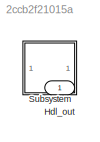
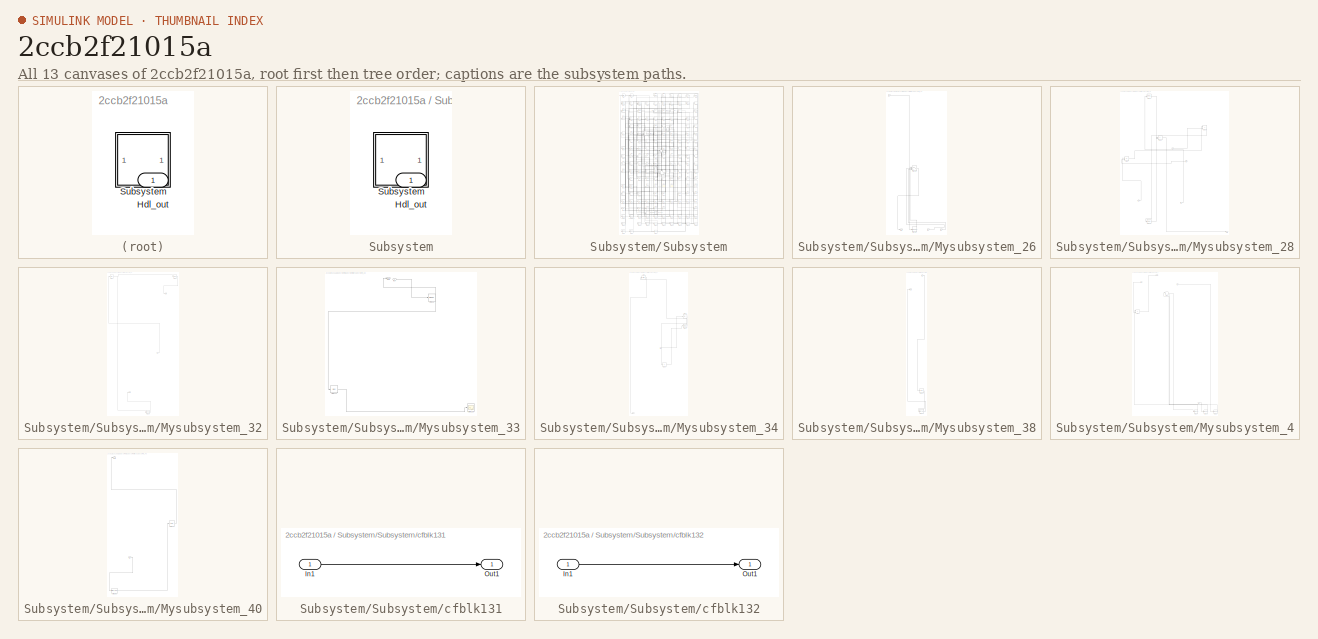
[diagram: thumbnail index - all 13 canvases of the model, root first then tree order]
MODEL slx_2ccb2f21015a
KIND model
CONFIG AbsTol = auto
CONFIG EnableMultiTasking = off
CONFIG FixedStep = auto
CONFIG MaxStep = auto
CONFIG MinStep = auto
CONFIG RelTol = 1e-3
CONFIG SampleTimeConstraint = Unconstrained
CONFIG SolverName = VariableStepAuto
CONFIG StartTime = 0.0
CONFIG StopTime = 10.0
BLOCK [Outport] Hdl_out
  OutDataTypeStr = uint8
BLOCK [SubSystem] Subsystem
BLOCK [Outport] Subsystem/Hdl_out
  OutDataTypeStr = uint8
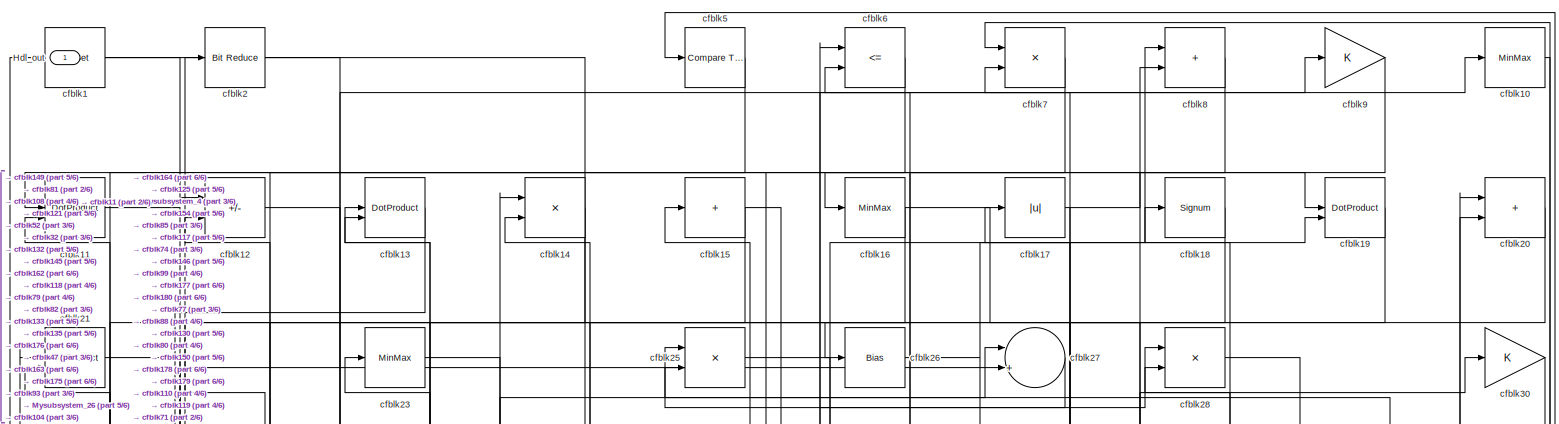
[diagram: Subsystem/Subsystem - part 1/6, full width, top band]
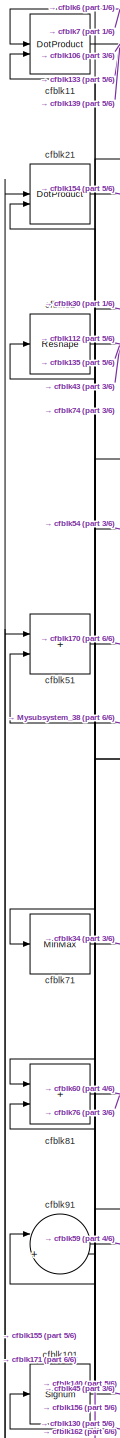
[diagram: Subsystem/Subsystem - part 2/6, top left region]
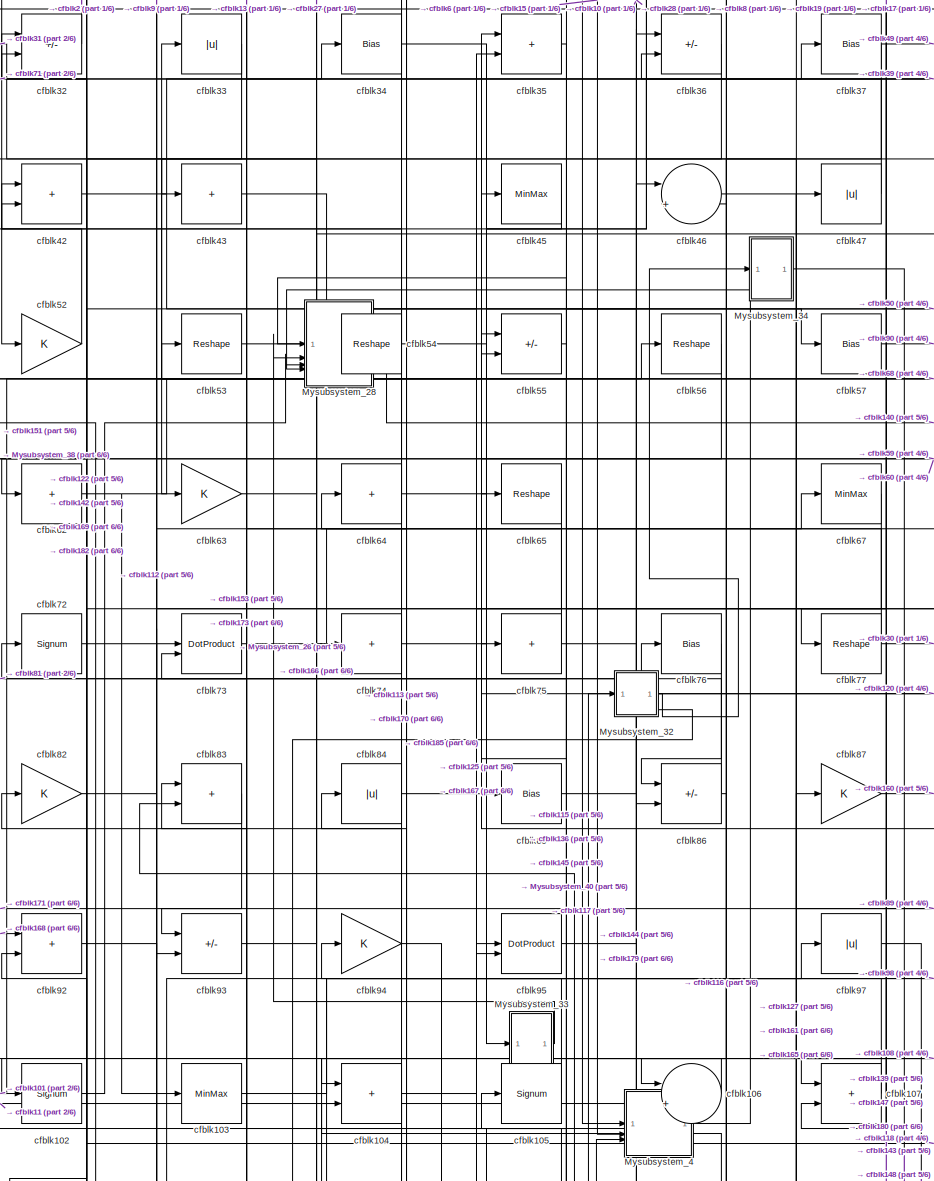
[diagram: Subsystem/Subsystem - part 3/6, central region]
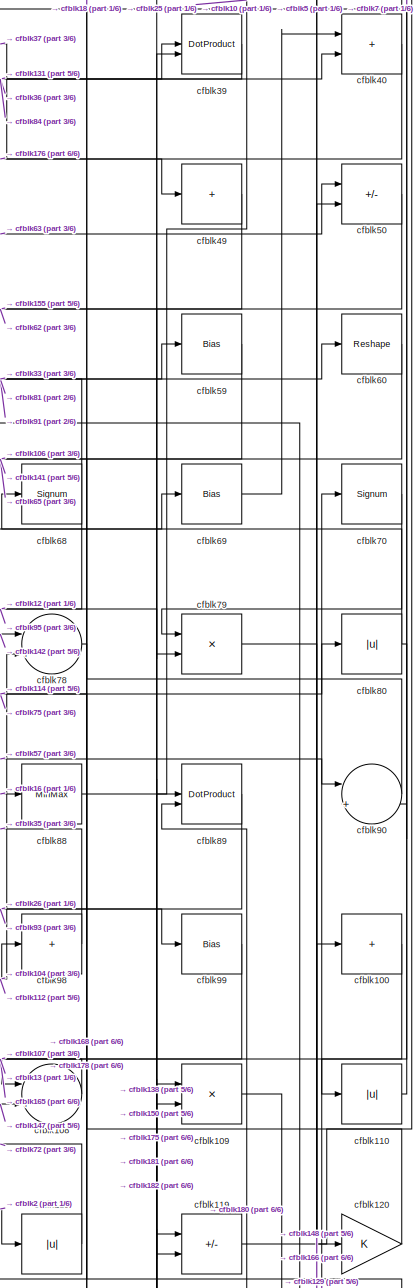
[diagram: Subsystem/Subsystem - part 4/6, middle right region]
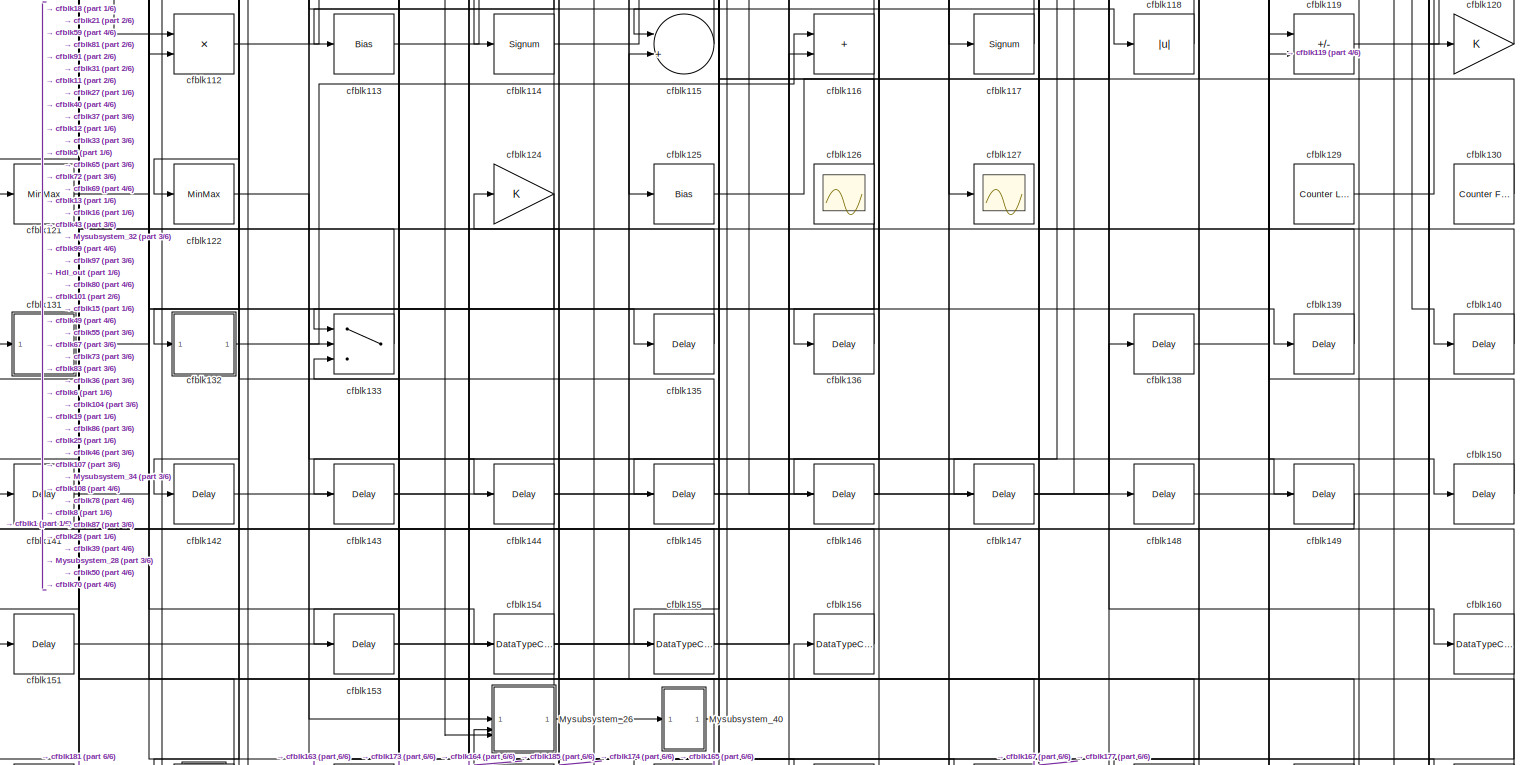
[diagram: Subsystem/Subsystem - part 5/6, full width, bottom band]
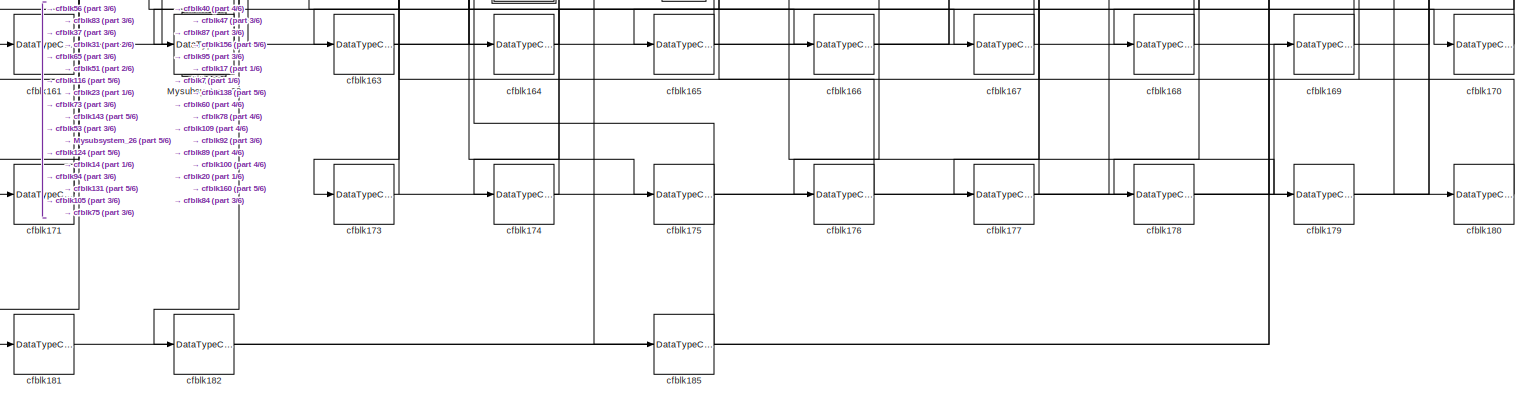
[diagram: Subsystem/Subsystem - part 6/6, full width, bottom band]
BLOCK [SubSystem] Subsystem/Subsystem
BLOCK [Outport] Subsystem/Subsystem/Hdl_out
  OutDataTypeStr = uint8
BLOCK [SubSystem] Subsystem/Subsystem/Mysubsystem_26
  RTWFcnName = Mysubsystem_26
  RTWFcnNameOpts = User specified
  RTWFileNameOpts = Use function name
  RTWSystemCode = Reusable function
  TreatAsAtomicUnit = on
BLOCK [Inport] Subsystem/Subsystem/Mysubsystem_26/In1
BLOCK [Inport] Subsystem/Subsystem/Mysubsystem_26/In2
  Port = 2
BLOCK [Inport] Subsystem/Subsystem/Mysubsystem_26/In3
  Port = 3
BLOCK [Outport] Subsystem/Subsystem/Mysubsystem_26/Out1
BLOCK [Switch] Subsystem/Subsystem/Mysubsystem_26/cfblk134
  InputSameDT = off
  SaturateOnIntegerOverflow = off
BLOCK [DataTypeConversion] Subsystem/Subsystem/Mysubsystem_26/cfblk184
  OutDataTypeStr = uint8
  RndMeth = Floor
  SaturateOnIntegerOverflow = off
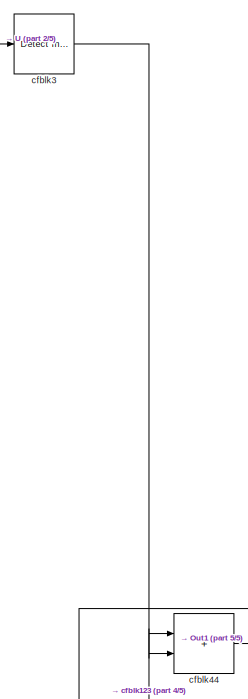
[diagram: Subsystem/Subsystem/Mysubsystem_28 - part 1/5, top left region]
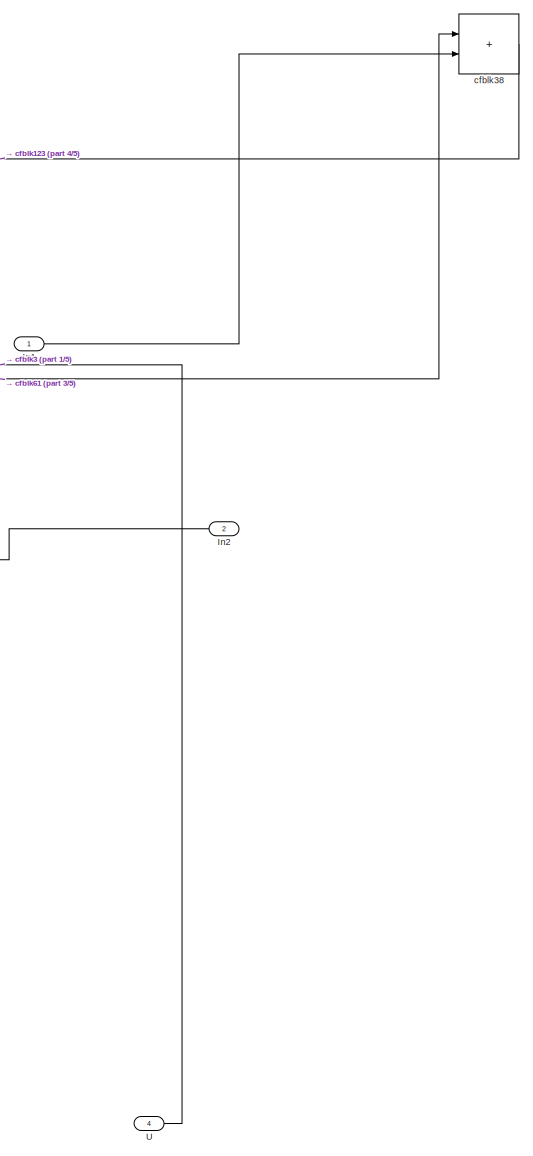
[diagram: Subsystem/Subsystem/Mysubsystem_28 - part 2/5, central region]
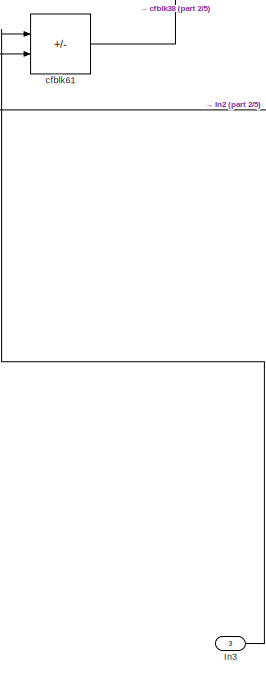
[diagram: Subsystem/Subsystem/Mysubsystem_28 - part 3/5, middle left region]
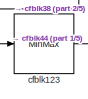
[diagram: Subsystem/Subsystem/Mysubsystem_28 - part 4/5, bottom left region]
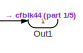
[diagram: Subsystem/Subsystem/Mysubsystem_28 - part 5/5, bottom right region]
BLOCK [SubSystem] Subsystem/Subsystem/Mysubsystem_28
  RTWFcnName = Mysubsystem_28
  RTWFcnNameOpts = User specified
  RTWFileNameOpts = Use function name
  RTWSystemCode = Reusable function
  TreatAsAtomicUnit = on
BLOCK [Inport] Subsystem/Subsystem/Mysubsystem_28/In1
BLOCK [Inport] Subsystem/Subsystem/Mysubsystem_28/In2
  Port = 2
BLOCK [Inport] Subsystem/Subsystem/Mysubsystem_28/In3
  Port = 3
BLOCK [Outport] Subsystem/Subsystem/Mysubsystem_28/Out1
BLOCK [Inport] Subsystem/Subsystem/Mysubsystem_28/U
  Port = 4
BLOCK [MinMax] Subsystem/Subsystem/Mysubsystem_28/cfblk123
BLOCK [Reference] Subsystem/Subsystem/Mysubsystem_28/cfblk3  REF=simulink/Logic and Bit
Operations/Detect
Increase
  LibrarySourceBlock = hdlsllib/Logic and Bit\nOperations/Detect\nIncrease
  SourceBlock = simulink/Logic and Bit\nOperations/Detect\nIncrease
  SourceType = Detect Increase
BLOCK [Sum] Subsystem/Subsystem/Mysubsystem_28/cfblk38
  IconShape = rectangular
BLOCK [Sum] Subsystem/Subsystem/Mysubsystem_28/cfblk44
  IconShape = rectangular
BLOCK [Sum] Subsystem/Subsystem/Mysubsystem_28/cfblk61
  IconShape = rectangular
  Inputs = +-
BLOCK [SubSystem] Subsystem/Subsystem/Mysubsystem_32
  RTWFcnName = Mysubsystem_32
  RTWFcnNameOpts = User specified
  RTWFileNameOpts = Use function name
  RTWSystemCode = Reusable function
  TreatAsAtomicUnit = on
BLOCK [Inport] Subsystem/Subsystem/Mysubsystem_32/In1
BLOCK [Outport] Subsystem/Subsystem/Mysubsystem_32/Out1
BLOCK [Outport] Subsystem/Subsystem/Mysubsystem_32/Out2
  Port = 2
BLOCK [DataTypeConversion] Subsystem/Subsystem/Mysubsystem_32/cfblk186
  OutDataTypeStr = uint8
  RndMeth = Floor
  SaturateOnIntegerOverflow = off
BLOCK [Bias] Subsystem/Subsystem/Mysubsystem_32/cfblk22
  Bias = 0.0
  SaturateOnIntegerOverflow = off
BLOCK [Signum] Subsystem/Subsystem/Mysubsystem_32/cfblk29
BLOCK [SubSystem] Subsystem/Subsystem/Mysubsystem_33
  RTWFcnName = Mysubsystem_33
  RTWFcnNameOpts = User specified
  RTWFileNameOpts = Use function name
  RTWSystemCode = Reusable function
  TreatAsAtomicUnit = on
BLOCK [Inport] Subsystem/Subsystem/Mysubsystem_33/In1
BLOCK [Outport] Subsystem/Subsystem/Mysubsystem_33/Out1
BLOCK [Bias] Subsystem/Subsystem/Mysubsystem_33/cfblk111
  Bias = 0.0
  SaturateOnIntegerOverflow = off
BLOCK [Scope] Subsystem/Subsystem/Mysubsystem_33/cfblk128
  Floating = off
  NumInputPorts = 1
  ScopeSpecificationString = Simulink.scopes.TimeScopeBlockCfg('CurrentConfiguration', extmgr.ConfigurationSet(extmgr.Configuration('Core','General UI',true),extmgr.Configuration('Core','Source UI',true),extmgr.Configuration('Sources','WiredSimulink',true,'DataLoggingVariableName','ScopeData2','DataLoggingSaveFormat','Array','DataLoggingLimitDataPoints',true,'DataLoggingDecimation','1'),extmgr.Configuration('Visuals','Time Do...<+868ch>
BLOCK [MinMax] Subsystem/Subsystem/Mysubsystem_33/cfblk66
BLOCK [SubSystem] Subsystem/Subsystem/Mysubsystem_34
  RTWFcnName = Mysubsystem_34
  RTWFcnNameOpts = User specified
  RTWFileNameOpts = Use function name
  RTWSystemCode = Reusable function
  TreatAsAtomicUnit = on
BLOCK [Inport] Subsystem/Subsystem/Mysubsystem_34/In1
BLOCK [Reference] Subsystem/Subsystem/Mysubsystem_34/cfblk4  REF=hdlsllib/Logic and Bit
Operations/Bit Slice
  SourceBlock = hdlsllib/Logic and Bit\nOperations/Bit Slice
  SourceType = Bit Slice
BLOCK [Abs] Subsystem/Subsystem/Mysubsystem_34/cfblk48
  SaturateOnIntegerOverflow = off
BLOCK [MinMax] Subsystem/Subsystem/Mysubsystem_34/cfblk58
BLOCK [Sum] Subsystem/Subsystem/Mysubsystem_34/cfblk96
  IconShape = rectangular
  Inputs = +
BLOCK [Outport] Subsystem/Subsystem/Mysubsystem_34/y
BLOCK [SubSystem] Subsystem/Subsystem/Mysubsystem_38
  RTWFcnName = Mysubsystem_38
  RTWFcnNameOpts = User specified
  RTWFileNameOpts = Use function name
  RTWSystemCode = Reusable function
  TreatAsAtomicUnit = on
BLOCK [Inport] Subsystem/Subsystem/Mysubsystem_38/In1
BLOCK [Outport] Subsystem/Subsystem/Mysubsystem_38/Out1
BLOCK [Delay] Subsystem/Subsystem/Mysubsystem_38/cfblk152
  InputPortMap = u0
  SampleTime = 1
BLOCK [DataTypeConversion] Subsystem/Subsystem/Mysubsystem_38/cfblk172
  OutDataTypeStr = uint8
  RndMeth = Floor
  SaturateOnIntegerOverflow = off
BLOCK [SubSystem] Subsystem/Subsystem/Mysubsystem_4
  RTWFcnName = Mysubsystem_4
  RTWFcnNameOpts = User specified
  RTWFileNameOpts = Use function name
  RTWSystemCode = Reusable function
  TreatAsAtomicUnit = on
BLOCK [Inport] Subsystem/Subsystem/Mysubsystem_4/In1
BLOCK [Inport] Subsystem/Subsystem/Mysubsystem_4/In2
  Port = 2
BLOCK [Inport] Subsystem/Subsystem/Mysubsystem_4/In3
  Port = 3
BLOCK [Outport] Subsystem/Subsystem/Mysubsystem_4/Out1
BLOCK [DataTypeConversion] Subsystem/Subsystem/Mysubsystem_4/cfblk157
  OutDataTypeStr = uint8
  RndMeth = Floor
  SaturateOnIntegerOverflow = off
BLOCK [DataTypeConversion] Subsystem/Subsystem/Mysubsystem_4/cfblk158
  OutDataTypeStr = uint8
  RndMeth = Floor
  SaturateOnIntegerOverflow = off
BLOCK [DataTypeConversion] Subsystem/Subsystem/Mysubsystem_4/cfblk159
  OutDataTypeStr = uint8
  RndMeth = Floor
  SaturateOnIntegerOverflow = off
BLOCK [Sum] Subsystem/Subsystem/Mysubsystem_4/cfblk24
  Inputs = |++
BLOCK [Product] Subsystem/Subsystem/Mysubsystem_4/cfblk41
  Inputs = */
  RndMeth = Zero
  SaturateOnIntegerOverflow = on
BLOCK [SubSystem] Subsystem/Subsystem/Mysubsystem_40
  RTWFcnName = Mysubsystem_40
  RTWFcnNameOpts = User specified
  RTWFileNameOpts = Use function name
  RTWSystemCode = Reusable function
  TreatAsAtomicUnit = on
BLOCK [Inport] Subsystem/Subsystem/Mysubsystem_40/In1
BLOCK [Outport] Subsystem/Subsystem/Mysubsystem_40/Out1
BLOCK [Delay] Subsystem/Subsystem/Mysubsystem_40/cfblk137
  InputPortMap = u0
  SampleTime = 1
BLOCK [DataTypeConversion] Subsystem/Subsystem/Mysubsystem_40/cfblk183
  OutDataTypeStr = uint8
  RndMeth = Floor
  SaturateOnIntegerOverflow = off
BLOCK [Reference] Subsystem/Subsystem/cfblk1  REF=simulink/Logic and Bit
Operations/Bit Set
  LibrarySourceBlock = hdlsllib/Logic and Bit\nOperations/Bit Set
  SourceBlock = simulink/Logic and Bit\nOperations/Bit Set
  SourceType = Bit Set
BLOCK [MinMax] Subsystem/Subsystem/cfblk10
  OutDataTypeStr = uint8
BLOCK [Sum] Subsystem/Subsystem/cfblk100
  IconShape = rectangular
  Inputs = +
  OutDataTypeStr = uint8
BLOCK [Signum] Subsystem/Subsystem/cfblk101
BLOCK [Signum] Subsystem/Subsystem/cfblk102
BLOCK [MinMax] Subsystem/Subsystem/cfblk103
  OutDataTypeStr = uint8
BLOCK [Sum] Subsystem/Subsystem/cfblk104
  IconShape = rectangular
  OutDataTypeStr = uint8
BLOCK [Signum] Subsystem/Subsystem/cfblk105
BLOCK [Sum] Subsystem/Subsystem/cfblk106
  Inputs = |++
  OutDataTypeStr = uint8
BLOCK [Sum] Subsystem/Subsystem/cfblk107
  IconShape = rectangular
  OutDataTypeStr = uint8
BLOCK [Sum] Subsystem/Subsystem/cfblk108
  Inputs = |++
  OutDataTypeStr = uint8
BLOCK [Product] Subsystem/Subsystem/cfblk109
  Inputs = */
  OutDataTypeStr = uint8
  RndMeth = Zero
  SaturateOnIntegerOverflow = on
BLOCK [DotProduct] Subsystem/Subsystem/cfblk11
  OutDataTypeStr = uint8
BLOCK [Abs] Subsystem/Subsystem/cfblk110
  OutDataTypeStr = uint8
  SaturateOnIntegerOverflow = off
BLOCK [Product] Subsystem/Subsystem/cfblk112
  Inputs = */
  OutDataTypeStr = uint8
  RndMeth = Zero
  SaturateOnIntegerOverflow = on
BLOCK [Bias] Subsystem/Subsystem/cfblk113
  Bias = 0.0
  SaturateOnIntegerOverflow = off
BLOCK [Signum] Subsystem/Subsystem/cfblk114
BLOCK [Sum] Subsystem/Subsystem/cfblk115
  Inputs = |++
  OutDataTypeStr = uint8
BLOCK [Sum] Subsystem/Subsystem/cfblk116
  IconShape = rectangular
  OutDataTypeStr = uint8
BLOCK [Signum] Subsystem/Subsystem/cfblk117
BLOCK [Abs] Subsystem/Subsystem/cfblk118
  OutDataTypeStr = uint8
  SaturateOnIntegerOverflow = off
BLOCK [Sum] Subsystem/Subsystem/cfblk119
  IconShape = rectangular
  Inputs = +-
  OutDataTypeStr = uint8
BLOCK [Sum] Subsystem/Subsystem/cfblk12
  IconShape = rectangular
  Inputs = +-
  OutDataTypeStr = uint8
BLOCK [Gain] Subsystem/Subsystem/cfblk120
  OutDataTypeStr = uint8
BLOCK [MinMax] Subsystem/Subsystem/cfblk121
  OutDataTypeStr = uint8
BLOCK [MinMax] Subsystem/Subsystem/cfblk122
  OutDataTypeStr = uint8
BLOCK [Gain] Subsystem/Subsystem/cfblk124
  OutDataTypeStr = uint8
BLOCK [Bias] Subsystem/Subsystem/cfblk125
  Bias = 0.0
  SaturateOnIntegerOverflow = off
BLOCK [Scope] Subsystem/Subsystem/cfblk126
  Floating = on
  NumInputPorts = 1
  ScopeSpecificationString = Simulink.scopes.TimeScopeBlockCfg('CurrentConfiguration', extmgr.ConfigurationSet(extmgr.Configuration('Core','General UI',true,'FigureColor',[0.156862745098039 0.156862745098039 0.156862745098039]),extmgr.Configuration('Core','Source UI',true),extmgr.Configuration('Sources','WiredSimulink',true,'DataLoggingVariableName','ScopeData1','DataLoggingSaveFormat','StructureWithTime','DataLoggingLimitDat...<+2713ch>
BLOCK [Scope] Subsystem/Subsystem/cfblk127
  Floating = off
  NumInputPorts = 1
  ScopeSpecificationString = Simulink.scopes.TimeScopeBlockCfg('CurrentConfiguration', extmgr.ConfigurationSet(extmgr.Configuration('Core','General UI',true),extmgr.Configuration('Core','Source UI',true),extmgr.Configuration('Sources','WiredSimulink',true,'DataLoggingVariableName','ScopeData2','DataLoggingSaveFormat','Array','DataLoggingLimitDataPoints',true,'DataLoggingDecimation','1'),extmgr.Configuration('Visuals','Time Do...<+868ch>
BLOCK [Reference] Subsystem/Subsystem/cfblk129  REF=hdlsllib/Sources/Counter
Limited
  SourceBlock = hdlsllib/Sources/Counter\nLimited
  SourceType = Counter Limited
BLOCK [DotProduct] Subsystem/Subsystem/cfblk13
  OutDataTypeStr = uint8
BLOCK [Reference] Subsystem/Subsystem/cfblk130  REF=hdlsllib/Sources/Counter
Free-Running
  SourceBlock = hdlsllib/Sources/Counter\nFree-Running
  SourceType = Counter Free-Running
BLOCK [SubSystem] Subsystem/Subsystem/cfblk131
  LibrarySourceBlock = hdlsllib/Ports &\nSubsystems/Subsystem
BLOCK [Inport] Subsystem/Subsystem/cfblk131/In1
BLOCK [Outport] Subsystem/Subsystem/cfblk131/Out1
BLOCK [SubSystem] Subsystem/Subsystem/cfblk132
  LibrarySourceBlock = hdlsllib/Ports &\nSubsystems/Subsystem
BLOCK [Inport] Subsystem/Subsystem/cfblk132/In1
BLOCK [Outport] Subsystem/Subsystem/cfblk132/Out1
BLOCK [Switch] Subsystem/Subsystem/cfblk133
  InputSameDT = off
  OutDataTypeStr = uint8
  SaturateOnIntegerOverflow = off
BLOCK [Delay] Subsystem/Subsystem/cfblk135
  InputPortMap = u0
  SampleTime = 1
BLOCK [Delay] Subsystem/Subsystem/cfblk136
  InputPortMap = u0
  SampleTime = 1
BLOCK [Delay] Subsystem/Subsystem/cfblk138
  InputPortMap = u0
  SampleTime = 1
BLOCK [Delay] Subsystem/Subsystem/cfblk139
  InputPortMap = u0
  SampleTime = 1
BLOCK [Product] Subsystem/Subsystem/cfblk14
  Inputs = */
  OutDataTypeStr = uint8
  RndMeth = Zero
  SaturateOnIntegerOverflow = on
BLOCK [Delay] Subsystem/Subsystem/cfblk140
  InputPortMap = u0
  SampleTime = 1
BLOCK [Delay] Subsystem/Subsystem/cfblk141
  InputPortMap = u0
  SampleTime = 1
BLOCK [Delay] Subsystem/Subsystem/cfblk142
  InputPortMap = u0
  SampleTime = 1
BLOCK [Delay] Subsystem/Subsystem/cfblk143
  InputPortMap = u0
  SampleTime = 1
BLOCK [Delay] Subsystem/Subsystem/cfblk144
  InputPortMap = u0
  SampleTime = 1
BLOCK [Delay] Subsystem/Subsystem/cfblk145
  InputPortMap = u0
  SampleTime = 1
BLOCK [Delay] Subsystem/Subsystem/cfblk146
  InputPortMap = u0
  SampleTime = 1
BLOCK [Delay] Subsystem/Subsystem/cfblk147
  InputPortMap = u0
  SampleTime = 1
BLOCK [Delay] Subsystem/Subsystem/cfblk148
  InputPortMap = u0
  SampleTime = 1
BLOCK [Delay] Subsystem/Subsystem/cfblk149
  InputPortMap = u0
  SampleTime = 1
BLOCK [Sum] Subsystem/Subsystem/cfblk15
  IconShape = rectangular
  Inputs = +
  OutDataTypeStr = uint8
BLOCK [Delay] Subsystem/Subsystem/cfblk150
  InputPortMap = u0
  SampleTime = 1
BLOCK [Delay] Subsystem/Subsystem/cfblk151
  InputPortMap = u0
  SampleTime = 1
BLOCK [Delay] Subsystem/Subsystem/cfblk153
  InputPortMap = u0
  SampleTime = 1
BLOCK [DataTypeConversion] Subsystem/Subsystem/cfblk154
  OutDataTypeStr = uint8
  RndMeth = Floor
  SaturateOnIntegerOverflow = off
BLOCK [DataTypeConversion] Subsystem/Subsystem/cfblk155
  OutDataTypeStr = uint8
  RndMeth = Floor
  SaturateOnIntegerOverflow = off
BLOCK [DataTypeConversion] Subsystem/Subsystem/cfblk156
  OutDataTypeStr = uint8
  RndMeth = Floor
  SaturateOnIntegerOverflow = off
BLOCK [MinMax] Subsystem/Subsystem/cfblk16
  OutDataTypeStr = uint8
BLOCK [DataTypeConversion] Subsystem/Subsystem/cfblk160
  OutDataTypeStr = uint8
  RndMeth = Floor
  SaturateOnIntegerOverflow = off
BLOCK [DataTypeConversion] Subsystem/Subsystem/cfblk161
  OutDataTypeStr = uint8
  RndMeth = Floor
  SaturateOnIntegerOverflow = off
BLOCK [DataTypeConversion] Subsystem/Subsystem/cfblk162
  OutDataTypeStr = uint8
  RndMeth = Floor
  SaturateOnIntegerOverflow = off
BLOCK [DataTypeConversion] Subsystem/Subsystem/cfblk163
  OutDataTypeStr = uint8
  RndMeth = Floor
  SaturateOnIntegerOverflow = off
BLOCK [DataTypeConversion] Subsystem/Subsystem/cfblk164
  OutDataTypeStr = uint8
  RndMeth = Floor
  SaturateOnIntegerOverflow = off
BLOCK [DataTypeConversion] Subsystem/Subsystem/cfblk165
  OutDataTypeStr = uint8
  RndMeth = Floor
  SaturateOnIntegerOverflow = off
BLOCK [DataTypeConversion] Subsystem/Subsystem/cfblk166
  OutDataTypeStr = uint8
  RndMeth = Floor
  SaturateOnIntegerOverflow = off
BLOCK [DataTypeConversion] Subsystem/Subsystem/cfblk167
  OutDataTypeStr = uint8
  RndMeth = Floor
  SaturateOnIntegerOverflow = off
BLOCK [DataTypeConversion] Subsystem/Subsystem/cfblk168
  OutDataTypeStr = uint8
  RndMeth = Floor
  SaturateOnIntegerOverflow = off
BLOCK [DataTypeConversion] Subsystem/Subsystem/cfblk169
  OutDataTypeStr = uint8
  RndMeth = Floor
  SaturateOnIntegerOverflow = off
BLOCK [Abs] Subsystem/Subsystem/cfblk17
  OutDataTypeStr = uint8
  SaturateOnIntegerOverflow = off
BLOCK [DataTypeConversion] Subsystem/Subsystem/cfblk170
  OutDataTypeStr = uint8
  RndMeth = Floor
  SaturateOnIntegerOverflow = off
BLOCK [DataTypeConversion] Subsystem/Subsystem/cfblk171
  OutDataTypeStr = uint8
  RndMeth = Floor
  SaturateOnIntegerOverflow = off
BLOCK [DataTypeConversion] Subsystem/Subsystem/cfblk173
  OutDataTypeStr = uint8
  RndMeth = Floor
  SaturateOnIntegerOverflow = off
BLOCK [DataTypeConversion] Subsystem/Subsystem/cfblk174
  OutDataTypeStr = uint8
  RndMeth = Floor
  SaturateOnIntegerOverflow = off
BLOCK [DataTypeConversion] Subsystem/Subsystem/cfblk175
  OutDataTypeStr = uint8
  RndMeth = Floor
  SaturateOnIntegerOverflow = off
BLOCK [DataTypeConversion] Subsystem/Subsystem/cfblk176
  OutDataTypeStr = uint8
  RndMeth = Floor
  SaturateOnIntegerOverflow = off
BLOCK [DataTypeConversion] Subsystem/Subsystem/cfblk177
  OutDataTypeStr = uint8
  RndMeth = Floor
  SaturateOnIntegerOverflow = off
BLOCK [DataTypeConversion] Subsystem/Subsystem/cfblk178
  OutDataTypeStr = uint8
  RndMeth = Floor
  SaturateOnIntegerOverflow = off
BLOCK [DataTypeConversion] Subsystem/Subsystem/cfblk179
  OutDataTypeStr = uint8
  RndMeth = Floor
  SaturateOnIntegerOverflow = off
BLOCK [Signum] Subsystem/Subsystem/cfblk18
BLOCK [DataTypeConversion] Subsystem/Subsystem/cfblk180
  OutDataTypeStr = uint8
  RndMeth = Floor
  SaturateOnIntegerOverflow = off
BLOCK [DataTypeConversion] Subsystem/Subsystem/cfblk181
  OutDataTypeStr = uint8
  RndMeth = Floor
  SaturateOnIntegerOverflow = off
BLOCK [DataTypeConversion] Subsystem/Subsystem/cfblk182
  OutDataTypeStr = uint8
  RndMeth = Floor
  SaturateOnIntegerOverflow = off
BLOCK [DataTypeConversion] Subsystem/Subsystem/cfblk185
  OutDataTypeStr = uint8
  RndMeth = Floor
  SaturateOnIntegerOverflow = off
BLOCK [DotProduct] Subsystem/Subsystem/cfblk19
  OutDataTypeStr = uint8
BLOCK [Reference] Subsystem/Subsystem/cfblk2  REF=hdlsllib/Logic and Bit
Operations/Bit Reduce
  SourceBlock = hdlsllib/Logic and Bit\nOperations/Bit Reduce
  SourceType = Bit Reduce
BLOCK [Sum] Subsystem/Subsystem/cfblk20
  IconShape = rectangular
  OutDataTypeStr = uint8
BLOCK [DotProduct] Subsystem/Subsystem/cfblk21
  OutDataTypeStr = uint8
BLOCK [MinMax] Subsystem/Subsystem/cfblk23
  OutDataTypeStr = uint8
BLOCK [Product] Subsystem/Subsystem/cfblk25
  Inputs = */
  OutDataTypeStr = uint8
  RndMeth = Zero
  SaturateOnIntegerOverflow = on
BLOCK [Bias] Subsystem/Subsystem/cfblk26
  Bias = 0.0
  SaturateOnIntegerOverflow = off
BLOCK [Sum] Subsystem/Subsystem/cfblk27
  Inputs = |++
  OutDataTypeStr = uint8
BLOCK [Product] Subsystem/Subsystem/cfblk28
  Inputs = */
  OutDataTypeStr = uint8
  RndMeth = Zero
  SaturateOnIntegerOverflow = on
BLOCK [Gain] Subsystem/Subsystem/cfblk30
  OutDataTypeStr = uint8
BLOCK [Reshape] Subsystem/Subsystem/cfblk31
BLOCK [Sum] Subsystem/Subsystem/cfblk32
  IconShape = rectangular
  Inputs = +-
  OutDataTypeStr = uint8
BLOCK [Abs] Subsystem/Subsystem/cfblk33
  OutDataTypeStr = uint8
  SaturateOnIntegerOverflow = off
BLOCK [Bias] Subsystem/Subsystem/cfblk34
  Bias = 0.0
  SaturateOnIntegerOverflow = off
BLOCK [Sum] Subsystem/Subsystem/cfblk35
  IconShape = rectangular
  OutDataTypeStr = uint8
BLOCK [Sum] Subsystem/Subsystem/cfblk36
  IconShape = rectangular
  Inputs = +-
  OutDataTypeStr = uint8
BLOCK [Bias] Subsystem/Subsystem/cfblk37
  Bias = 0.0
  SaturateOnIntegerOverflow = off
BLOCK [DotProduct] Subsystem/Subsystem/cfblk39
  OutDataTypeStr = uint8
BLOCK [Sum] Subsystem/Subsystem/cfblk40
  IconShape = rectangular
  OutDataTypeStr = uint8
BLOCK [Sum] Subsystem/Subsystem/cfblk42
  IconShape = rectangular
  OutDataTypeStr = uint8
BLOCK [Sum] Subsystem/Subsystem/cfblk43
  IconShape = rectangular
  Inputs = +
  OutDataTypeStr = uint8
BLOCK [MinMax] Subsystem/Subsystem/cfblk45
  OutDataTypeStr = uint8
BLOCK [Sum] Subsystem/Subsystem/cfblk46
  Inputs = |++
  OutDataTypeStr = uint8
BLOCK [Abs] Subsystem/Subsystem/cfblk47
  OutDataTypeStr = uint8
  SaturateOnIntegerOverflow = off
BLOCK [Sum] Subsystem/Subsystem/cfblk49
  IconShape = rectangular
  Inputs = +
  OutDataTypeStr = uint8
BLOCK [Reference] Subsystem/Subsystem/cfblk5  REF=hdlsllib/Logic and Bit
Operations/Compare
To Constant
  SourceBlock = hdlsllib/Logic and Bit\nOperations/Compare\nTo Constant
  SourceType = Compare To Constant
BLOCK [Sum] Subsystem/Subsystem/cfblk50
  IconShape = rectangular
  Inputs = +-
  OutDataTypeStr = uint8
BLOCK [Sum] Subsystem/Subsystem/cfblk51
  IconShape = rectangular
  OutDataTypeStr = uint8
BLOCK [Gain] Subsystem/Subsystem/cfblk52
  OutDataTypeStr = uint8
BLOCK [Reshape] Subsystem/Subsystem/cfblk53
BLOCK [Reshape] Subsystem/Subsystem/cfblk54
BLOCK [Sum] Subsystem/Subsystem/cfblk55
  IconShape = rectangular
  Inputs = +-
  OutDataTypeStr = uint8
BLOCK [Reshape] Subsystem/Subsystem/cfblk56
BLOCK [Bias] Subsystem/Subsystem/cfblk57
  Bias = 0.0
  SaturateOnIntegerOverflow = off
BLOCK [Bias] Subsystem/Subsystem/cfblk59
  Bias = 0.0
  SaturateOnIntegerOverflow = off
BLOCK [RelationalOperator] Subsystem/Subsystem/cfblk6
  InputSameDT = off
  Operator = <=
  OutDataTypeStr = boolean
BLOCK [Reshape] Subsystem/Subsystem/cfblk60
BLOCK [Sum] Subsystem/Subsystem/cfblk62
  IconShape = rectangular
  Inputs = +
  OutDataTypeStr = uint8
BLOCK [Gain] Subsystem/Subsystem/cfblk63
  OutDataTypeStr = uint8
BLOCK [Sum] Subsystem/Subsystem/cfblk64
  IconShape = rectangular
  Inputs = +
  OutDataTypeStr = uint8
BLOCK [Reshape] Subsystem/Subsystem/cfblk65
BLOCK [MinMax] Subsystem/Subsystem/cfblk67
  OutDataTypeStr = uint8
BLOCK [Signum] Subsystem/Subsystem/cfblk68
BLOCK [Bias] Subsystem/Subsystem/cfblk69
  Bias = 0.0
  SaturateOnIntegerOverflow = off
BLOCK [Product] Subsystem/Subsystem/cfblk7
  Inputs = */
  OutDataTypeStr = uint8
  RndMeth = Zero
  SaturateOnIntegerOverflow = on
BLOCK [Signum] Subsystem/Subsystem/cfblk70
BLOCK [MinMax] Subsystem/Subsystem/cfblk71
  OutDataTypeStr = uint8
BLOCK [Signum] Subsystem/Subsystem/cfblk72
BLOCK [DotProduct] Subsystem/Subsystem/cfblk73
  OutDataTypeStr = uint8
BLOCK [Sum] Subsystem/Subsystem/cfblk74
  IconShape = rectangular
  Inputs = +
  OutDataTypeStr = uint8
BLOCK [Sum] Subsystem/Subsystem/cfblk75
  IconShape = rectangular
  Inputs = +
  OutDataTypeStr = uint8
BLOCK [Bias] Subsystem/Subsystem/cfblk76
  Bias = 0.0
  SaturateOnIntegerOverflow = off
BLOCK [Reshape] Subsystem/Subsystem/cfblk77
BLOCK [Sum] Subsystem/Subsystem/cfblk78
  Inputs = |++
  OutDataTypeStr = uint8
BLOCK [Product] Subsystem/Subsystem/cfblk79
  Inputs = */
  OutDataTypeStr = uint8
  RndMeth = Zero
  SaturateOnIntegerOverflow = on
BLOCK [Sum] Subsystem/Subsystem/cfblk8
  IconShape = rectangular
  OutDataTypeStr = uint8
BLOCK [Abs] Subsystem/Subsystem/cfblk80
  OutDataTypeStr = uint8
  SaturateOnIntegerOverflow = off
BLOCK [Sum] Subsystem/Subsystem/cfblk81
  IconShape = rectangular
  OutDataTypeStr = uint8
BLOCK [Gain] Subsystem/Subsystem/cfblk82
  OutDataTypeStr = uint8
BLOCK [Sum] Subsystem/Subsystem/cfblk83
  IconShape = rectangular
  OutDataTypeStr = uint8
BLOCK [Abs] Subsystem/Subsystem/cfblk84
  OutDataTypeStr = uint8
  SaturateOnIntegerOverflow = off
BLOCK [Bias] Subsystem/Subsystem/cfblk85
  Bias = 0.0
  SaturateOnIntegerOverflow = off
BLOCK [Sum] Subsystem/Subsystem/cfblk86
  IconShape = rectangular
  Inputs = +-
  OutDataTypeStr = uint8
BLOCK [Gain] Subsystem/Subsystem/cfblk87
  OutDataTypeStr = uint8
BLOCK [MinMax] Subsystem/Subsystem/cfblk88
  OutDataTypeStr = uint8
BLOCK [DotProduct] Subsystem/Subsystem/cfblk89
  OutDataTypeStr = uint8
BLOCK [Gain] Subsystem/Subsystem/cfblk9
  OutDataTypeStr = uint8
BLOCK [Sum] Subsystem/Subsystem/cfblk90
  Inputs = |++
  OutDataTypeStr = uint8
BLOCK [Sum] Subsystem/Subsystem/cfblk91
  Inputs = |++
  OutDataTypeStr = uint8
BLOCK [Sum] Subsystem/Subsystem/cfblk92
  IconShape = rectangular
  OutDataTypeStr = uint8
BLOCK [Sum] Subsystem/Subsystem/cfblk93
  IconShape = rectangular
  Inputs = +-
  OutDataTypeStr = uint8
BLOCK [Gain] Subsystem/Subsystem/cfblk94
  OutDataTypeStr = uint8
BLOCK [DotProduct] Subsystem/Subsystem/cfblk95
  OutDataTypeStr = uint8
BLOCK [Abs] Subsystem/Subsystem/cfblk97
  OutDataTypeStr = uint8
  SaturateOnIntegerOverflow = off
BLOCK [Sum] Subsystem/Subsystem/cfblk98
  IconShape = rectangular
  Inputs = +
  OutDataTypeStr = uint8
BLOCK [Bias] Subsystem/Subsystem/cfblk99
  Bias = 0.0
  SaturateOnIntegerOverflow = off
LINE Subsystem/Subsystem/Mysubsystem_26/In1:1 -> Subsystem/Subsystem/Mysubsystem_26/cfblk184:1
LINE Subsystem/Subsystem/Mysubsystem_26/In2:1 -> Subsystem/Subsystem/Mysubsystem_26/cfblk134:2
LINE Subsystem/Subsystem/Mysubsystem_26/In3:1 -> Subsystem/Subsystem/Mysubsystem_26/cfblk134:3
LINE Subsystem/Subsystem/Mysubsystem_26/cfblk134:1 -> Subsystem/Subsystem/Mysubsystem_26/Out1:1
LINE Subsystem/Subsystem/Mysubsystem_26/cfblk184:1 -> Subsystem/Subsystem/Mysubsystem_26/cfblk134:1
NET Subsystem/Subsystem/Mysubsystem_26:1 -> Subsystem/Subsystem/Hdl_out:1, Subsystem/Subsystem/Mysubsystem_40:1
LINE Subsystem/Subsystem/Mysubsystem_28/In1:1 -> Subsystem/Subsystem/Mysubsystem_28/cfblk38:2
LINE Subsystem/Subsystem/Mysubsystem_28/In2:1 -> Subsystem/Subsystem/Mysubsystem_28/cfblk61:2
LINE Subsystem/Subsystem/Mysubsystem_28/In3:1 -> Subsystem/Subsystem/Mysubsystem_28/cfblk61:1
LINE Subsystem/Subsystem/Mysubsystem_28/U:1 -> Subsystem/Subsystem/Mysubsystem_28/cfblk3:1
LINE Subsystem/Subsystem/Mysubsystem_28/cfblk123:1 -> Subsystem/Subsystem/Mysubsystem_28/cfblk44:1
LINE Subsystem/Subsystem/Mysubsystem_28/cfblk38:1 -> Subsystem/Subsystem/Mysubsystem_28/cfblk123:1
LINE Subsystem/Subsystem/Mysubsystem_28/cfblk3:1 -> Subsystem/Subsystem/Mysubsystem_28/cfblk44:2
LINE Subsystem/Subsystem/Mysubsystem_28/cfblk44:1 -> Subsystem/Subsystem/Mysubsystem_28/Out1:1
LINE Subsystem/Subsystem/Mysubsystem_28/cfblk61:1 -> Subsystem/Subsystem/Mysubsystem_28/cfblk38:1
LINE Subsystem/Subsystem/Mysubsystem_28:1 -> Subsystem/Subsystem/cfblk140:1
LINE Subsystem/Subsystem/Mysubsystem_32/In1:1 -> Subsystem/Subsystem/Mysubsystem_32/cfblk22:1
LINE Subsystem/Subsystem/Mysubsystem_32/cfblk186:1 -> Subsystem/Subsystem/Mysubsystem_32/Out2:1
NET Subsystem/Subsystem/Mysubsystem_32/cfblk22:1 -> Subsystem/Subsystem/Mysubsystem_32/cfblk186:1, Subsystem/Subsystem/Mysubsystem_32/cfblk29:1
LINE Subsystem/Subsystem/Mysubsystem_32/cfblk29:1 -> Subsystem/Subsystem/Mysubsystem_32/Out1:1
LINE Subsystem/Subsystem/Mysubsystem_32:1 -> Subsystem/Subsystem/Mysubsystem_34:1
LINE Subsystem/Subsystem/Mysubsystem_32:2 -> Subsystem/Subsystem/Mysubsystem_26:3
LINE Subsystem/Subsystem/Mysubsystem_33/In1:1 -> Subsystem/Subsystem/Mysubsystem_33/cfblk66:1
LINE Subsystem/Subsystem/Mysubsystem_33/cfblk111:1 -> Subsystem/Subsystem/Mysubsystem_33/cfblk128:1
NET Subsystem/Subsystem/Mysubsystem_33/cfblk66:1 -> Subsystem/Subsystem/Mysubsystem_33/Out1:1, Subsystem/Subsystem/Mysubsystem_33/cfblk111:1
LINE Subsystem/Subsystem/Mysubsystem_33:1 -> Subsystem/Subsystem/Mysubsystem_28:2
LINE Subsystem/Subsystem/Mysubsystem_34/In1:1 -> Subsystem/Subsystem/Mysubsystem_34/cfblk48:1
LINE Subsystem/Subsystem/Mysubsystem_34/cfblk48:1 -> Subsystem/Subsystem/Mysubsystem_34/cfblk96:1
LINE Subsystem/Subsystem/Mysubsystem_34/cfblk4:1 -> Subsystem/Subsystem/Mysubsystem_34/y:1
LINE Subsystem/Subsystem/Mysubsystem_34/cfblk58:1 -> Subsystem/Subsystem/Mysubsystem_34/cfblk4:1
LINE Subsystem/Subsystem/Mysubsystem_34/cfblk96:1 -> Subsystem/Subsystem/Mysubsystem_34/cfblk58:1
LINE Subsystem/Subsystem/Mysubsystem_34:1 -> Subsystem/Subsystem/cfblk143:1
LINE Subsystem/Subsystem/Mysubsystem_38/In1:1 -> Subsystem/Subsystem/Mysubsystem_38/cfblk152:1
LINE Subsystem/Subsystem/Mysubsystem_38/cfblk152:1 -> Subsystem/Subsystem/Mysubsystem_38/cfblk172:1
LINE Subsystem/Subsystem/Mysubsystem_38/cfblk172:1 -> Subsystem/Subsystem/Mysubsystem_38/Out1:1
LINE Subsystem/Subsystem/Mysubsystem_38:1 -> Subsystem/Subsystem/cfblk51:2
LINE Subsystem/Subsystem/Mysubsystem_4/In1:1 -> Subsystem/Subsystem/Mysubsystem_4/cfblk41:2
LINE Subsystem/Subsystem/Mysubsystem_4/In2:1 -> Subsystem/Subsystem/Mysubsystem_4/cfblk159:1
LINE Subsystem/Subsystem/Mysubsystem_4/In3:1 -> Subsystem/Subsystem/Mysubsystem_4/cfblk158:1
LINE Subsystem/Subsystem/Mysubsystem_4/cfblk157:1 -> Subsystem/Subsystem/Mysubsystem_4/cfblk41:1
LINE Subsystem/Subsystem/Mysubsystem_4/cfblk158:1 -> Subsystem/Subsystem/Mysubsystem_4/cfblk24:1
LINE Subsystem/Subsystem/Mysubsystem_4/cfblk159:1 -> Subsystem/Subsystem/Mysubsystem_4/cfblk24:2
LINE Subsystem/Subsystem/Mysubsystem_4/cfblk24:1 -> Subsystem/Subsystem/Mysubsystem_4/cfblk157:1
LINE Subsystem/Subsystem/Mysubsystem_4/cfblk41:1 -> Subsystem/Subsystem/Mysubsystem_4/Out1:1
LINE Subsystem/Subsystem/Mysubsystem_40/In1:1 -> Subsystem/Subsystem/Mysubsystem_40/cfblk183:1
LINE Subsystem/Subsystem/Mysubsystem_40/cfblk137:1 -> Subsystem/Subsystem/Mysubsystem_40/Out1:1
LINE Subsystem/Subsystem/Mysubsystem_40/cfblk183:1 -> Subsystem/Subsystem/Mysubsystem_40/cfblk137:1
LINE Subsystem/Subsystem/Mysubsystem_40:1 -> Subsystem/Subsystem/cfblk83:2
LINE Subsystem/Subsystem/Mysubsystem_4:1 -> Subsystem/Subsystem/Mysubsystem_28:4
LINE Subsystem/Subsystem/cfblk100:1 -> Subsystem/Subsystem/cfblk165:1
LINE Subsystem/Subsystem/cfblk101:1 -> Subsystem/Subsystem/cfblk45:1
LINE Subsystem/Subsystem/cfblk102:1 -> Subsystem/Subsystem/Mysubsystem_28:3
LINE Subsystem/Subsystem/cfblk103:1 -> Subsystem/Subsystem/cfblk35:2
NET Subsystem/Subsystem/cfblk104:1 -> Subsystem/Subsystem/cfblk113:1, Subsystem/Subsystem/cfblk98:1
LINE Subsystem/Subsystem/cfblk105:1 -> Subsystem/Subsystem/cfblk94:1
LINE Subsystem/Subsystem/cfblk106:1 -> Subsystem/Subsystem/cfblk102:1
LINE Subsystem/Subsystem/cfblk107:1 -> Subsystem/Subsystem/cfblk64:1
LINE Subsystem/Subsystem/cfblk108:1 -> Subsystem/Subsystem/cfblk107:1
LINE Subsystem/Subsystem/cfblk109:1 -> Subsystem/Subsystem/cfblk180:1
LINE Subsystem/Subsystem/cfblk10:1 -> Subsystem/Subsystem/cfblk110:1
LINE Subsystem/Subsystem/cfblk110:1 -> Subsystem/Subsystem/cfblk7:1
NET Subsystem/Subsystem/cfblk112:1 -> Subsystem/Subsystem/cfblk55:2, Subsystem/Subsystem/cfblk69:1, Subsystem/Subsystem/cfblk78:2
NET Subsystem/Subsystem/cfblk113:1 -> Subsystem/Subsystem/cfblk149:1, Subsystem/Subsystem/cfblk97:1
LINE Subsystem/Subsystem/cfblk114:1 -> Subsystem/Subsystem/cfblk80:1
LINE Subsystem/Subsystem/cfblk115:1 -> Subsystem/Subsystem/cfblk83:1
NET Subsystem/Subsystem/cfblk116:1 -> Subsystem/Subsystem/cfblk104:2, Subsystem/Subsystem/cfblk163:1
LINE Subsystem/Subsystem/cfblk117:1 -> Subsystem/Subsystem/Mysubsystem_32:1
LINE Subsystem/Subsystem/cfblk118:1 -> Subsystem/Subsystem/cfblk72:1
LINE Subsystem/Subsystem/cfblk119:1 -> Subsystem/Subsystem/cfblk5:1
NET Subsystem/Subsystem/cfblk11:1 -> Subsystem/Subsystem/cfblk106:2, Subsystem/Subsystem/cfblk133:2, Subsystem/Subsystem/cfblk139:1
LINE Subsystem/Subsystem/cfblk120:1 -> Subsystem/Subsystem/cfblk75:1
LINE Subsystem/Subsystem/cfblk121:1 -> Subsystem/Subsystem/cfblk27:2
LINE Subsystem/Subsystem/cfblk122:1 -> Subsystem/Subsystem/cfblk144:1
LINE Subsystem/Subsystem/cfblk124:1 -> Subsystem/Subsystem/cfblk173:1
NET Subsystem/Subsystem/cfblk125:1 -> Subsystem/Subsystem/cfblk15:1, Subsystem/Subsystem/cfblk8:2
LINE Subsystem/Subsystem/cfblk129:1 -> Subsystem/Subsystem/cfblk70:1
LINE Subsystem/Subsystem/cfblk12:1 -> Subsystem/Subsystem/cfblk79:2
NET Subsystem/Subsystem/cfblk130:1 -> Subsystem/Subsystem/cfblk101:1, Subsystem/Subsystem/cfblk28:1
LINE Subsystem/Subsystem/cfblk131/In1:1 -> Subsystem/Subsystem/cfblk131/Out1:1
NET Subsystem/Subsystem/cfblk131:1 -> Subsystem/Subsystem/cfblk181:1, Subsystem/Subsystem/cfblk40:2
LINE Subsystem/Subsystem/cfblk132/In1:1 -> Subsystem/Subsystem/cfblk132/Out1:1
LINE Subsystem/Subsystem/cfblk132:1 -> Subsystem/Subsystem/cfblk116:1
NET Subsystem/Subsystem/cfblk133:1 -> Subsystem/Subsystem/cfblk91:1, Subsystem/Subsystem/cfblk91:2
LINE Subsystem/Subsystem/cfblk135:1 -> Subsystem/Subsystem/cfblk13:2
LINE Subsystem/Subsystem/cfblk136:1 -> Subsystem/Subsystem/cfblk73:1
LINE Subsystem/Subsystem/cfblk138:1 -> Subsystem/Subsystem/cfblk39:2
LINE Subsystem/Subsystem/cfblk139:1 -> Subsystem/Subsystem/cfblk107:2
LINE Subsystem/Subsystem/cfblk13:1 -> Subsystem/Subsystem/cfblk108:1
LINE Subsystem/Subsystem/cfblk140:1 -> Subsystem/Subsystem/cfblk81:2
LINE Subsystem/Subsystem/cfblk141:1 -> Subsystem/Subsystem/cfblk112:2
LINE Subsystem/Subsystem/cfblk142:1 -> Subsystem/Subsystem/cfblk78:1
LINE Subsystem/Subsystem/cfblk143:1 -> Subsystem/Subsystem/cfblk164:1
LINE Subsystem/Subsystem/cfblk144:1 -> Subsystem/Subsystem/cfblk36:1
LINE Subsystem/Subsystem/cfblk145:1 -> Subsystem/Subsystem/cfblk12:2
LINE Subsystem/Subsystem/cfblk146:1 -> Subsystem/Subsystem/cfblk6:2
LINE Subsystem/Subsystem/cfblk147:1 -> Subsystem/Subsystem/cfblk108:2
LINE Subsystem/Subsystem/cfblk148:1 -> Subsystem/Subsystem/cfblk50:2
LINE Subsystem/Subsystem/cfblk149:1 -> Subsystem/Subsystem/cfblk1:1
LINE Subsystem/Subsystem/cfblk14:1 -> Subsystem/Subsystem/cfblk162:1
LINE Subsystem/Subsystem/cfblk150:1 -> Subsystem/Subsystem/cfblk119:1
LINE Subsystem/Subsystem/cfblk151:1 -> Subsystem/Subsystem/cfblk116:2
LINE Subsystem/Subsystem/cfblk153:1 -> Subsystem/Subsystem/cfblk115:2
LINE Subsystem/Subsystem/cfblk154:1 -> Subsystem/Subsystem/cfblk6:1
LINE Subsystem/Subsystem/cfblk155:1 -> Subsystem/Subsystem/cfblk21:1
LINE Subsystem/Subsystem/cfblk156:1 -> Subsystem/Subsystem/cfblk21:2
NET Subsystem/Subsystem/cfblk15:1 -> Subsystem/Subsystem/Mysubsystem_4:2, Subsystem/Subsystem/cfblk52:1
NET Subsystem/Subsystem/cfblk160:1 -> Subsystem/Subsystem/cfblk133:3, Subsystem/Subsystem/cfblk174:1
LINE Subsystem/Subsystem/cfblk161:1 -> Subsystem/Subsystem/cfblk87:1
LINE Subsystem/Subsystem/cfblk162:1 -> Subsystem/Subsystem/cfblk31:1
LINE Subsystem/Subsystem/cfblk163:1 -> Subsystem/Subsystem/cfblk14:1
LINE Subsystem/Subsystem/cfblk164:1 -> Subsystem/Subsystem/cfblk14:2
NET Subsystem/Subsystem/cfblk165:1 -> Subsystem/Subsystem/cfblk131:1, Subsystem/Subsystem/cfblk47:1
LINE Subsystem/Subsystem/cfblk166:1 -> Subsystem/Subsystem/cfblk100:1
NET Subsystem/Subsystem/cfblk167:1 -> Subsystem/Subsystem/cfblk156:1, Subsystem/Subsystem/cfblk95:1
LINE Subsystem/Subsystem/cfblk168:1 -> Subsystem/Subsystem/cfblk92:1
LINE Subsystem/Subsystem/cfblk169:1 -> Subsystem/Subsystem/cfblk92:2
NET Subsystem/Subsystem/cfblk16:1 -> Subsystem/Subsystem/cfblk133:1, Subsystem/Subsystem/cfblk88:1
LINE Subsystem/Subsystem/cfblk170:1 -> Subsystem/Subsystem/cfblk84:1
LINE Subsystem/Subsystem/cfblk171:1 -> Subsystem/Subsystem/cfblk51:1
NET Subsystem/Subsystem/cfblk173:1 -> Subsystem/Subsystem/cfblk169:1, Subsystem/Subsystem/cfblk73:2
LINE Subsystem/Subsystem/cfblk174:1 -> Subsystem/Subsystem/cfblk124:1
LINE Subsystem/Subsystem/cfblk175:1 -> Subsystem/Subsystem/cfblk89:1
LINE Subsystem/Subsystem/cfblk176:1 -> Subsystem/Subsystem/cfblk23:1
NET Subsystem/Subsystem/cfblk177:1 -> Subsystem/Subsystem/cfblk138:1, Subsystem/Subsystem/cfblk7:2
LINE Subsystem/Subsystem/cfblk178:1 -> Subsystem/Subsystem/cfblk20:1
LINE Subsystem/Subsystem/cfblk179:1 -> Subsystem/Subsystem/cfblk20:2
NET Subsystem/Subsystem/cfblk17:1 -> Subsystem/Subsystem/cfblk19:1, Subsystem/Subsystem/cfblk77:1
NET Subsystem/Subsystem/cfblk180:1 -> Subsystem/Subsystem/cfblk105:1, Subsystem/Subsystem/cfblk17:1, Subsystem/Subsystem/cfblk89:2
LINE Subsystem/Subsystem/cfblk181:1 -> Subsystem/Subsystem/cfblk109:1
LINE Subsystem/Subsystem/cfblk182:1 -> Subsystem/Subsystem/cfblk109:2
LINE Subsystem/Subsystem/cfblk185:1 -> Subsystem/Subsystem/Mysubsystem_26:2
LINE Subsystem/Subsystem/cfblk18:1 -> Subsystem/Subsystem/cfblk121:1
NET Subsystem/Subsystem/cfblk19:1 -> Subsystem/Subsystem/cfblk104:1, Subsystem/Subsystem/cfblk146:1
LINE Subsystem/Subsystem/cfblk1:1 -> Subsystem/Subsystem/cfblk12:1
LINE Subsystem/Subsystem/cfblk20:1 -> Subsystem/Subsystem/cfblk177:1
LINE Subsystem/Subsystem/cfblk21:1 -> Subsystem/Subsystem/cfblk154:1
LINE Subsystem/Subsystem/cfblk23:1 -> Subsystem/Subsystem/cfblk175:1
LINE Subsystem/Subsystem/cfblk25:1 -> Subsystem/Subsystem/cfblk117:1
NET Subsystem/Subsystem/cfblk26:1 -> Subsystem/Subsystem/cfblk19:2, Subsystem/Subsystem/cfblk99:1
LINE Subsystem/Subsystem/cfblk27:1 -> Subsystem/Subsystem/cfblk25:2
LINE Subsystem/Subsystem/cfblk28:1 -> Subsystem/Subsystem/cfblk150:1
LINE Subsystem/Subsystem/cfblk2:1 -> Subsystem/Subsystem/cfblk118:1
LINE Subsystem/Subsystem/cfblk30:1 -> Subsystem/Subsystem/cfblk71:1
NET Subsystem/Subsystem/cfblk31:1 -> Subsystem/Subsystem/cfblk112:1, Subsystem/Subsystem/cfblk135:1, Subsystem/Subsystem/cfblk43:1, Subsystem/Subsystem/cfblk74:1
LINE Subsystem/Subsystem/cfblk32:1 -> Subsystem/Subsystem/cfblk2:1
LINE Subsystem/Subsystem/cfblk33:1 -> Subsystem/Subsystem/cfblk122:1
LINE Subsystem/Subsystem/cfblk34:1 -> Subsystem/Subsystem/cfblk57:1
LINE Subsystem/Subsystem/cfblk35:1 -> Subsystem/Subsystem/cfblk85:1
LINE Subsystem/Subsystem/cfblk36:1 -> Subsystem/Subsystem/cfblk63:1
NET Subsystem/Subsystem/cfblk37:1 -> Subsystem/Subsystem/Mysubsystem_38:1, Subsystem/Subsystem/cfblk151:1, Subsystem/Subsystem/cfblk46:2, Subsystem/Subsystem/cfblk49:1
LINE Subsystem/Subsystem/cfblk39:1 -> Subsystem/Subsystem/cfblk36:2
LINE Subsystem/Subsystem/cfblk40:1 -> Subsystem/Subsystem/cfblk176:1
NET Subsystem/Subsystem/cfblk42:1 -> Subsystem/Subsystem/cfblk37:1, Subsystem/Subsystem/cfblk86:2
NET Subsystem/Subsystem/cfblk43:1 -> Subsystem/Subsystem/cfblk125:1, Subsystem/Subsystem/cfblk153:1
LINE Subsystem/Subsystem/cfblk45:1 -> Subsystem/Subsystem/cfblk42:2
LINE Subsystem/Subsystem/cfblk46:1 -> Subsystem/Subsystem/cfblk127:1
LINE Subsystem/Subsystem/cfblk47:1 -> Subsystem/Subsystem/cfblk13:1
LINE Subsystem/Subsystem/cfblk49:1 -> Subsystem/Subsystem/cfblk155:1
NET Subsystem/Subsystem/cfblk50:1 -> Subsystem/Subsystem/cfblk119:2, Subsystem/Subsystem/cfblk62:1
LINE Subsystem/Subsystem/cfblk51:1 -> Subsystem/Subsystem/cfblk170:1
LINE Subsystem/Subsystem/cfblk52:1 -> Subsystem/Subsystem/cfblk42:1
LINE Subsystem/Subsystem/cfblk53:1 -> Subsystem/Subsystem/cfblk166:1
NET Subsystem/Subsystem/cfblk54:1 -> Subsystem/Subsystem/Mysubsystem_33:1, Subsystem/Subsystem/cfblk11:2
NET Subsystem/Subsystem/cfblk55:1 -> Subsystem/Subsystem/Mysubsystem_28:1, Subsystem/Subsystem/cfblk145:1
LINE Subsystem/Subsystem/cfblk56:1 -> Subsystem/Subsystem/cfblk161:1
LINE Subsystem/Subsystem/cfblk57:1 -> Subsystem/Subsystem/cfblk90:1
NET Subsystem/Subsystem/cfblk59:1 -> Subsystem/Subsystem/cfblk106:1, Subsystem/Subsystem/cfblk141:1
LINE Subsystem/Subsystem/cfblk5:1 -> Subsystem/Subsystem/cfblk132:1
NET Subsystem/Subsystem/cfblk60:1 -> Subsystem/Subsystem/cfblk178:1, Subsystem/Subsystem/cfblk65:1
NET Subsystem/Subsystem/cfblk62:1 -> Subsystem/Subsystem/cfblk103:1, Subsystem/Subsystem/cfblk54:1
LINE Subsystem/Subsystem/cfblk63:1 -> Subsystem/Subsystem/cfblk50:1
NET Subsystem/Subsystem/cfblk64:1 -> Subsystem/Subsystem/cfblk32:1, Subsystem/Subsystem/cfblk56:1
NET Subsystem/Subsystem/cfblk65:1 -> Subsystem/Subsystem/cfblk142:1, Subsystem/Subsystem/cfblk182:1
LINE Subsystem/Subsystem/cfblk67:1 -> Subsystem/Subsystem/cfblk115:1
NET Subsystem/Subsystem/cfblk68:1 -> Subsystem/Subsystem/cfblk33:1, Subsystem/Subsystem/cfblk95:2
LINE Subsystem/Subsystem/cfblk69:1 -> Subsystem/Subsystem/cfblk40:1
NET Subsystem/Subsystem/cfblk6:1 -> Subsystem/Subsystem/Mysubsystem_4:1, Subsystem/Subsystem/cfblk81:1
LINE Subsystem/Subsystem/cfblk70:1 -> Subsystem/Subsystem/cfblk79:1
LINE Subsystem/Subsystem/cfblk71:1 -> Subsystem/Subsystem/cfblk34:1
LINE Subsystem/Subsystem/cfblk72:1 -> Subsystem/Subsystem/Mysubsystem_26:1
LINE Subsystem/Subsystem/cfblk73:1 -> Subsystem/Subsystem/cfblk67:1
LINE Subsystem/Subsystem/cfblk74:1 -> Subsystem/Subsystem/cfblk8:1
NET Subsystem/Subsystem/cfblk75:1 -> Subsystem/Subsystem/cfblk179:1, Subsystem/Subsystem/cfblk53:1
LINE Subsystem/Subsystem/cfblk76:1 -> Subsystem/Subsystem/cfblk86:1
NET Subsystem/Subsystem/cfblk77:1 -> Subsystem/Subsystem/cfblk30:1, Subsystem/Subsystem/cfblk55:1
LINE Subsystem/Subsystem/cfblk78:1 -> Subsystem/Subsystem/cfblk168:1
LINE Subsystem/Subsystem/cfblk79:1 -> Subsystem/Subsystem/cfblk120:1
LINE Subsystem/Subsystem/cfblk7:1 -> Subsystem/Subsystem/cfblk11:1
NET Subsystem/Subsystem/cfblk80:1 -> Subsystem/Subsystem/cfblk18:1, Subsystem/Subsystem/cfblk90:2
NET Subsystem/Subsystem/cfblk81:1 -> Subsystem/Subsystem/cfblk60:1, Subsystem/Subsystem/cfblk76:1
NET Subsystem/Subsystem/cfblk82:1 -> Subsystem/Subsystem/cfblk93:2, Subsystem/Subsystem/cfblk9:1
LINE Subsystem/Subsystem/cfblk83:1 -> Subsystem/Subsystem/cfblk171:1
LINE Subsystem/Subsystem/cfblk84:1 -> Subsystem/Subsystem/cfblk39:1
NET Subsystem/Subsystem/cfblk85:1 -> Subsystem/Subsystem/cfblk10:1, Subsystem/Subsystem/cfblk28:2
NET Subsystem/Subsystem/cfblk86:1 -> Subsystem/Subsystem/cfblk136:1, Subsystem/Subsystem/cfblk32:2
LINE Subsystem/Subsystem/cfblk87:1 -> Subsystem/Subsystem/cfblk160:1
LINE Subsystem/Subsystem/cfblk88:1 -> Subsystem/Subsystem/cfblk25:1
LINE Subsystem/Subsystem/cfblk89:1 -> Subsystem/Subsystem/cfblk93:1
LINE Subsystem/Subsystem/cfblk8:1 -> Subsystem/Subsystem/cfblk26:1
LINE Subsystem/Subsystem/cfblk90:1 -> Subsystem/Subsystem/cfblk68:1
LINE Subsystem/Subsystem/cfblk91:1 -> Subsystem/Subsystem/cfblk59:1
LINE Subsystem/Subsystem/cfblk92:1 -> Subsystem/Subsystem/cfblk167:1
LINE Subsystem/Subsystem/cfblk93:1 -> Subsystem/Subsystem/cfblk27:1
NET Subsystem/Subsystem/cfblk94:1 -> Subsystem/Subsystem/cfblk185:1, Subsystem/Subsystem/cfblk82:1
LINE Subsystem/Subsystem/cfblk95:1 -> Subsystem/Subsystem/cfblk46:1
NET Subsystem/Subsystem/cfblk97:1 -> Subsystem/Subsystem/Mysubsystem_4:3, Subsystem/Subsystem/cfblk147:1, Subsystem/Subsystem/cfblk148:1
LINE Subsystem/Subsystem/cfblk98:1 -> Subsystem/Subsystem/cfblk35:1
LINE Subsystem/Subsystem/cfblk99:1 -> Subsystem/Subsystem/cfblk114:1
LINE Subsystem/Subsystem/cfblk9:1 -> Subsystem/Subsystem/cfblk16:1
note: NET lines group one-source signal fan-out (src -> all destinations, sorted); 1:1 wires keep LINE
